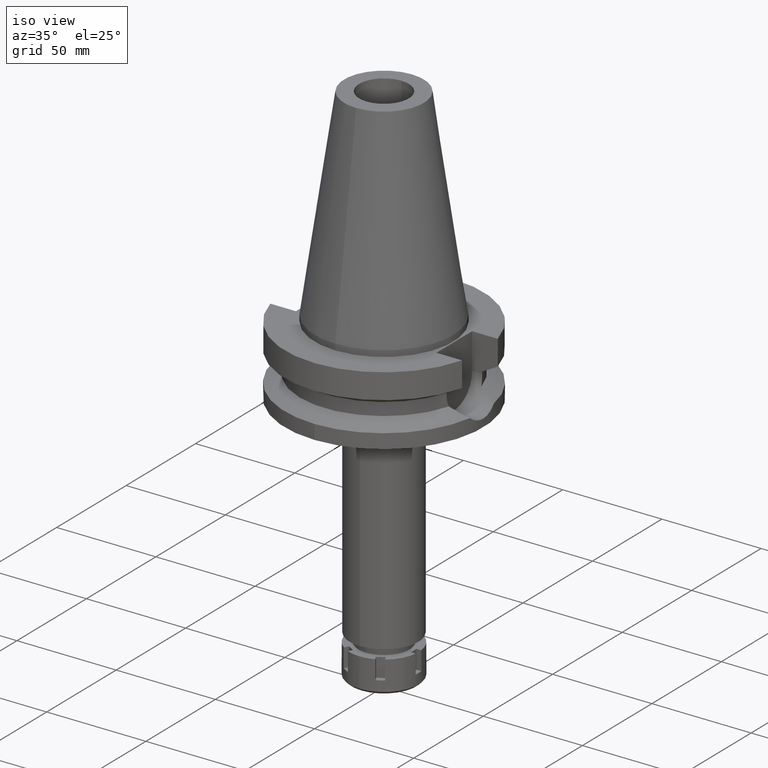
[diagram: clean part render]
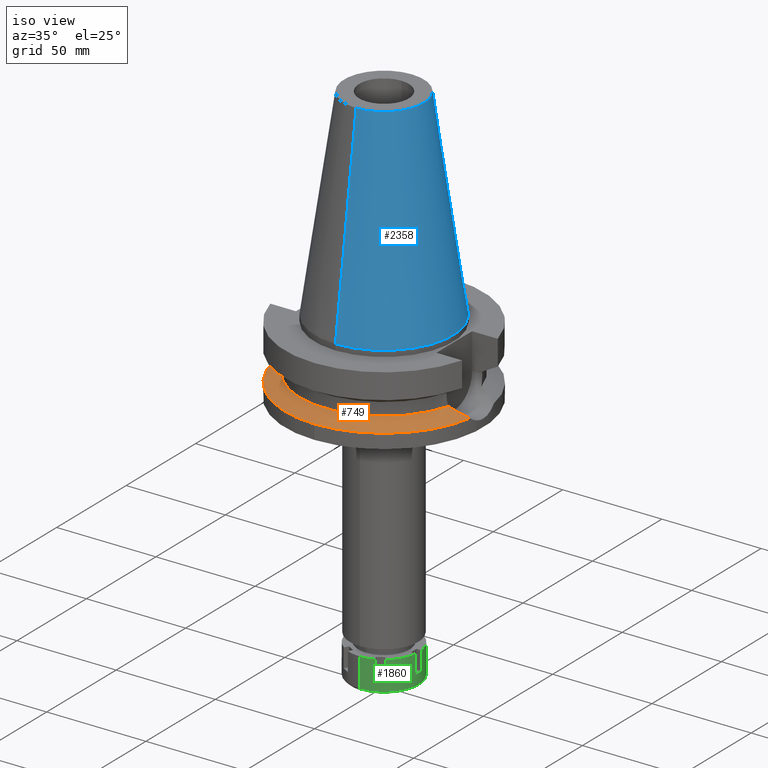
[diagram: same view with three faces highlighted in distinct colors, each labeled with its STEP entity id]
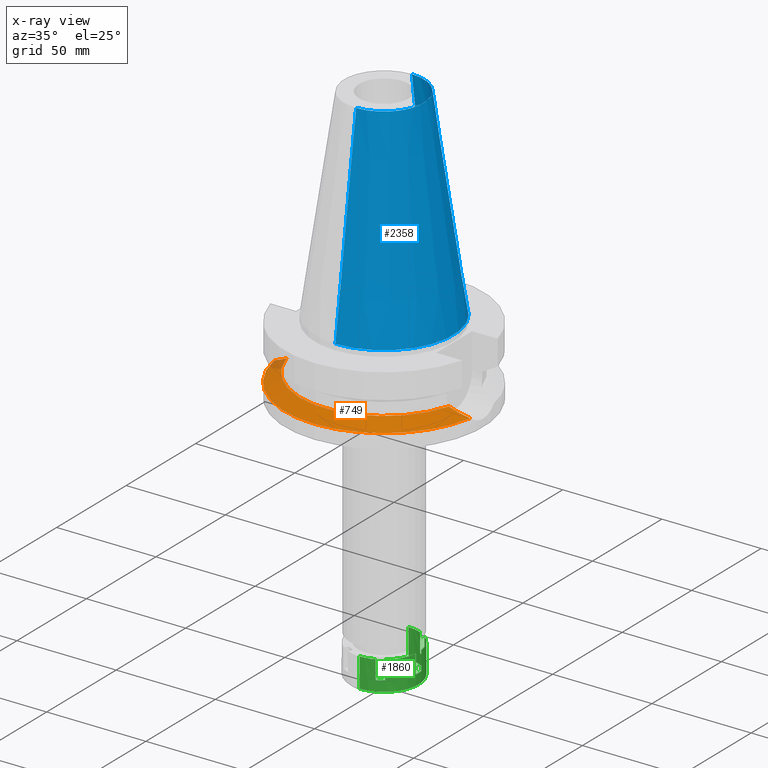
[diagram: x-ray of the same camera — body ghosted, the three highlighted faces saturated]
A machine part, iso view with three faces highlighted in distinct colors.
The next image is the same camera in x-ray (body ghosted, the three faces saturated) — at least one of them is partly hidden behind the body in this view.
Their STEP definitions:

[orange] entity #749 — the highlighted conical surface has half-angle 60 deg.
#41 = AXIS2_PLACEMENT_3D ( 'NONE', #3648, #2220, #3097 ) ;
#155 = DIRECTION ( 'NONE',  ( 0.0000000000000000000, -1.000000000000000000, 0.0000000000000000000 ) ) ;
#249 = CARTESIAN_POINT ( 'NONE',  ( 43.71205589239633582, -10.94529851844949953, -27.88622673543954278 ) ) ;
#266 = CARTESIAN_POINT ( 'NONE',  ( 44.08652366158886338, -10.82399127850445275, -28.07919682956623930 ) ) ;
#268 = CARTESIAN_POINT ( 'NONE',  ( -45.33991514702245240, -10.38063357216712390, -28.72396869562930632 ) ) ;
#326 = CARTESIAN_POINT ( 'NONE',  ( 0.0000000000000000000, -50.00000000000000000, -30.73730776426999967 ) ) ;
#368 = EDGE_CURVE ( 'NONE', #2691, #1750, #2238, .T. ) ;
#396 = ORIENTED_EDGE ( 'NONE', *, *, #368, .F. ) ;
#535 = CARTESIAN_POINT ( 'NONE',  ( 45.19864727449142094, -10.43327437534391677, -28.65163018592970445 ) ) ;
#539 = VERTEX_POINT ( 'NONE', #3121 ) ;
#557 = DIRECTION ( 'NONE',  ( 0.0000000000000000000, 0.0000000000000000000, -1.000000000000000000 ) ) ;
#708 = CARTESIAN_POINT ( 'NONE',  ( -40.85052569294000335, -11.72538061688000077, -26.40718074535000426 ) ) ;
#749 = ADVANCED_FACE ( 'NONE', ( #3534 ), #3039, .T. ) ;
#782 = ORIENTED_EDGE ( 'NONE', *, *, #1157, .F. ) ;
#810 = AXIS2_PLACEMENT_3D ( 'NONE', #888, #557, #2413 ) ;
#822 = CARTESIAN_POINT ( 'NONE',  ( 45.41149930443869920, -10.35343463059610514, -28.76111513600022462 ) ) ;
#837 = CARTESIAN_POINT ( 'NONE',  ( -45.47947479145116745, -10.32794287722815874, -28.79575928904283799 ) ) ;
#859 = CARTESIAN_POINT ( 'NONE',  ( -45.32671219262632434, -10.38558514207444361, -28.71717668202665408 ) ) ;
#888 = CARTESIAN_POINT ( 'NONE',  ( 0.0000000000000000000, 0.0000000000000000000, -28.57224425480999841 ) ) ;
#901 = CARTESIAN_POINT ( 'NONE',  ( 40.85052569294000335, -11.72538061688000077, -26.40718074535000426 ) ) ;
#905 = EDGE_LOOP ( 'NONE', ( #396, #782, #2512, #1445, #1078 ) ) ;
#1036 = DIRECTION ( 'NONE',  ( 0.0000000000000000000, -1.000000000000000000, 0.0000000000000000000 ) ) ;
#1047 = AXIS2_PLACEMENT_3D ( 'NONE', #3319, #1570, #1036 ) ;
#1078 = ORIENTED_EDGE ( 'NONE', *, *, #2577, .F. ) ;
#1079 = CARTESIAN_POINT ( 'NONE',  ( 40.85052569294000335, -11.72538061688000077, -26.40718074535000426 ) ) ;
#1141 = VERTEX_POINT ( 'NONE', #1079 ) ;
#1147 = CARTESIAN_POINT ( 'NONE',  ( -49.26250064874000145, -8.556052234130000045, -30.73730776426999967 ) ) ;
#1152 = CARTESIAN_POINT ( 'NONE',  ( 42.55071745611744660, -11.29929319511106023, -27.28707702801668233 ) ) ;
#1153 = CARTESIAN_POINT ( 'NONE',  ( -45.64115514236537763, -10.26608050230839808, -28.87892092315642500 ) ) ;
#1157 = EDGE_CURVE ( 'NONE', #539, #2691, #1481, .T. ) ;
#1298 = B_SPLINE_CURVE_WITH_KNOTS ( 'NONE', 3,
 ( #901, #1667, #1152, #249, #266, #1382, #2292, #535, #2525, #822, #3429, #2545, #2258, #3666, #1954 ),
 .UNSPECIFIED., .F., .F.,
 ( 4, 2, 2, 1, 1, 1, 2, 2, 4 ),
 ( 0.0000000000000000000, 0.2500000000000003331, 0.3750000000000014988, 0.4375000000000023315, 0.4687500000000027756, 0.4843750000000040523, 0.4921875000000048295, 0.5000000000000055511, 1.000000000000000000 ),
 .UNSPECIFIED. ) ;
#1323 = CARTESIAN_POINT ( 'NONE',  ( 0.0000000000000000000, 0.0000000000000000000, -26.40718074535000426 ) ) ;
#1327 = EDGE_CURVE ( 'NONE', #1141, #539, #1298, .T. ) ;
#1382 = CARTESIAN_POINT ( 'NONE',  ( 44.62925775102691972, -10.63815907006330619, -28.35864658413995798 ) ) ;
#1445 = ORIENTED_EDGE ( 'NONE', *, *, #2968, .F. ) ;
#1481 = CIRCLE ( 'NONE', #41, 50.00000000000000000 ) ;
#1533 = B_SPLINE_CURVE_WITH_KNOTS ( 'NONE', 3,
 ( #2259, #3167, #3431, #1706, #1993, #1684, #2834, #1153, #837, #3147, #1763, #268, #859, #1971, #1745, #2852 ),
 .UNSPECIFIED., .F., .F.,
 ( 4, 2, 2, 1, 1, 1, 1, 2, 2, 4 ),
 ( 0.0000000000000000000, 0.2500000000000850986, 0.3750000000001287859, 0.4375000000001507128, 0.4687500000001624811, 0.4843750000001693090, 0.4921875000001726952, 0.4960937500001733058, 0.5000000000001738609, 1.000000000000000000 ),
 .UNSPECIFIED. ) ;
#1570 = DIRECTION ( 'NONE',  ( 0.0000000000000000000, 0.0000000000000000000, -1.000000000000000000 ) ) ;
#1654 = AXIS2_PLACEMENT_3D ( 'NONE', #1323, #2146, #155 ) ;
#1667 = CARTESIAN_POINT ( 'NONE',  ( 41.72591166032965759, -11.52209110050590013, -26.86058858319618636 ) ) ;
#1684 = CARTESIAN_POINT ( 'NONE',  ( -46.22851604990404439, -10.03196276948648880, -29.18092708367271726 ) ) ;
#1706 = CARTESIAN_POINT ( 'NONE',  ( -47.09552617359732807, -9.660526748469512981, -29.62636400729780917 ) ) ;
#1745 = CARTESIAN_POINT ( 'NONE',  ( -42.52912223676329262, -11.33556276247899497, -27.27661303910516821 ) ) ;
#1750 = VERTEX_POINT ( 'NONE', #1147 ) ;
#1763 = CARTESIAN_POINT ( 'NONE',  ( -45.36323177517924421, -10.37187135454996678, -28.73596333807657643 ) ) ;
#1954 = CARTESIAN_POINT ( 'NONE',  ( 49.26250064874000145, -8.556052234130000045, -30.73730776426999967 ) ) ;
#1971 = CARTESIAN_POINT ( 'NONE',  ( -44.01780220698003632, -10.87568674646942846, -28.04382532369646341 ) ) ;
#1993 = CARTESIAN_POINT ( 'NONE',  ( -46.75546317251308892, -9.811123057261683655, -29.45172462093226429 ) ) ;
#2146 = DIRECTION ( 'NONE',  ( 0.0000000000000000000, 0.0000000000000000000, 1.000000000000000000 ) ) ;
#2220 = DIRECTION ( 'NONE',  ( 0.0000000000000000000, 0.0000000000000000000, -1.000000000000000000 ) ) ;
#2238 = CIRCLE ( 'NONE', #1047, 50.00000000000000000 ) ;
#2247 = CIRCLE ( 'NONE', #1654, 42.50000000000000000 ) ;
#2258 = CARTESIAN_POINT ( 'NONE',  ( 46.91867690740803454, -9.778675819256957169, -29.53630061612208024 ) ) ;
#2259 = CARTESIAN_POINT ( 'NONE',  ( -49.26250064874000145, -8.556052234130000045, -30.73730776426999967 ) ) ;
#2292 = CARTESIAN_POINT ( 'NONE',  ( 44.89588290465827214, -10.54427413037512906, -28.49587143876511419 ) ) ;
#2413 = DIRECTION ( 'NONE',  ( 0.0000000000000000000, -1.000000000000000000, 0.0000000000000000000 ) ) ;
#2512 = ORIENTED_EDGE ( 'NONE', *, *, #1327, .F. ) ;
#2525 = CARTESIAN_POINT ( 'NONE',  ( 45.34795488205713809, -10.37743536144881595, -28.72843099741480088 ) ) ;
#2545 = CARTESIAN_POINT ( 'NONE',  ( 45.47364822759700331, -10.32986049036476572, -28.79308085105692072 ) ) ;
#2577 = EDGE_CURVE ( 'NONE', #1750, #3530, #1533, .T. ) ;
#2691 = VERTEX_POINT ( 'NONE', #326 ) ;
#2834 = CARTESIAN_POINT ( 'NONE',  ( -45.96082933335384269, -10.14111845749937402, -29.04331959134392704 ) ) ;
#2852 = CARTESIAN_POINT ( 'NONE',  ( -40.85052569294000335, -11.72538061688000077, -26.40718074535000426 ) ) ;
#2968 = EDGE_CURVE ( 'NONE', #3530, #1141, #2247, .T. ) ;
#3039 = CONICAL_SURFACE ( 'NONE', #810, 46.25000000000000000, 1.047197551196400456 ) ;
#3097 = DIRECTION ( 'NONE',  ( 0.9852500129747439050, -0.1711210446826074982, 0.0000000000000000000 ) ) ;
#3121 = CARTESIAN_POINT ( 'NONE',  ( 49.26250064874000145, -8.556052234130000045, -30.73730776426999967 ) ) ;
#3147 = CARTESIAN_POINT ( 'NONE',  ( -45.39817380213906972, -10.35871663422425648, -28.75393815089545058 ) ) ;
#3167 = CARTESIAN_POINT ( 'NONE',  ( -48.69472545312260081, -8.881879085636674276, -30.44652836828989706 ) ) ;
#3319 = CARTESIAN_POINT ( 'NONE',  ( 0.0000000000000000000, 0.0000000000000000000, -30.73730776426999967 ) ) ;
#3429 = CARTESIAN_POINT ( 'NONE',  ( 45.45376346329539530, -10.33741897416011746, -28.78285341246331797 ) ) ;
#3431 = CARTESIAN_POINT ( 'NONE',  ( -48.08200993488475916, -9.200174691293726781, -30.13261548871570383 ) ) ;
#3530 = VERTEX_POINT ( 'NONE', #708 ) ;
#3534 = FACE_OUTER_BOUND ( 'NONE', #905, .T. ) ;
#3648 = CARTESIAN_POINT ( 'NONE',  ( 0.0000000000000000000, 0.0000000000000000000, -30.73730776426999967 ) ) ;
#3666 = CARTESIAN_POINT ( 'NONE',  ( 48.17421731096948179, -9.180580984649372667, -30.17995623842555730 ) ) ;

[blue] entity #2358 — the highlighted conical surface has half-angle 8.297 deg.
#121 = EDGE_LOOP ( 'NONE', ( #226, #1204, #1239, #3526 ) ) ;
#226 = ORIENTED_EDGE ( 'NONE', *, *, #1253, .T. ) ;
#280 = CARTESIAN_POINT ( 'NONE',  ( 0.0000000000000000000, -34.92499999999999716, 5.258016244624999869E-13 ) ) ;
#313 = DIRECTION ( 'NONE',  ( 0.0000000000000000000, -1.000000000000000000, 0.0000000000000000000 ) ) ;
#455 = VERTEX_POINT ( 'NONE', #280 ) ;
#521 = CARTESIAN_POINT ( 'NONE',  ( 0.0000000000000000000, 20.07942971896000017, 101.7999999999999972 ) ) ;
#600 = CARTESIAN_POINT ( 'NONE',  ( 0.0000000000000000000, -20.07942971896000017, 101.7999999999999972 ) ) ;
#651 = DIRECTION ( 'NONE',  ( 0.0000000000000000000, 0.0000000000000000000, -1.000000000000000000 ) ) ;
#694 = CIRCLE ( 'NONE', #3572, 34.92499999999999716 ) ;
#833 = CARTESIAN_POINT ( 'NONE',  ( 0.0000000000000000000, 20.07942971896000017, 101.7999999999999972 ) ) ;
#955 = CARTESIAN_POINT ( 'NONE',  ( 0.0000000000000000000, 34.92499999999999716, 5.258016244624999869E-13 ) ) ;
#1118 = DIRECTION ( 'NONE',  ( 0.0000000000000000000, 0.1443043893538948075, -0.9895333461855641000 ) ) ;
#1173 = VECTOR ( 'NONE', #1118, 1000.000000000000114 ) ;
#1204 = ORIENTED_EDGE ( 'NONE', *, *, #1960, .T. ) ;
#1239 = ORIENTED_EDGE ( 'NONE', *, *, #2660, .F. ) ;
#1253 = EDGE_CURVE ( 'NONE', #3579, #2547, #2492, .T. ) ;
#1313 = EDGE_CURVE ( 'NONE', #3579, #2779, #2583, .T. ) ;
#1493 = CARTESIAN_POINT ( 'NONE',  ( 0.0000000000000000000, 1.847992019912999597E-14, 50.89999999999999858 ) ) ;
#1528 = VECTOR ( 'NONE', #2327, 1000.000000000000114 ) ;
#1647 = CARTESIAN_POINT ( 'NONE',  ( 0.0000000000000000000, -20.07942971896000017, 101.7999999999999972 ) ) ;
#1744 = DIRECTION ( 'NONE',  ( 0.0000000000000000000, 1.000000000000000000, 0.0000000000000000000 ) ) ;
#1752 = FACE_OUTER_BOUND ( 'NONE', #121, .T. ) ;
#1933 = CONICAL_SURFACE ( 'NONE', #1996, 27.50221485948000222, 0.1448099680379422438 ) ;
#1960 = EDGE_CURVE ( 'NONE', #2547, #455, #3540, .T. ) ;
#1970 = CARTESIAN_POINT ( 'NONE',  ( 0.0000000000000000000, 1.847992019912999597E-14, 101.7999999999999972 ) ) ;
#1996 = AXIS2_PLACEMENT_3D ( 'NONE', #1493, #651, #313 ) ;
#2271 = DIRECTION ( 'NONE',  ( 0.0000000000000000000, 0.0000000000000000000, -1.000000000000000000 ) ) ;
#2327 = DIRECTION ( 'NONE',  ( 0.0000000000000000000, -0.1443043893538948075, -0.9895333461855641000 ) ) ;
#2358 = ADVANCED_FACE ( 'NONE', ( #1752 ), #1933, .T. ) ;
#2492 = CIRCLE ( 'NONE', #3151, 20.07942971896000017 ) ;
#2547 = VERTEX_POINT ( 'NONE', #1647 ) ;
#2583 = LINE ( 'NONE', #521, #1173 ) ;
#2584 = CARTESIAN_POINT ( 'NONE',  ( 0.0000000000000000000, 1.847992019912999597E-14, 3.979039320256999774E-13 ) ) ;
#2606 = DIRECTION ( 'NONE',  ( 0.0000000000000000000, 1.000000000000000000, 0.0000000000000000000 ) ) ;
#2660 = EDGE_CURVE ( 'NONE', #2779, #455, #694, .T. ) ;
#2779 = VERTEX_POINT ( 'NONE', #955 ) ;
#3151 = AXIS2_PLACEMENT_3D ( 'NONE', #1970, #2271, #1744 ) ;
#3187 = DIRECTION ( 'NONE',  ( 0.0000000000000000000, 0.0000000000000000000, -1.000000000000000000 ) ) ;
#3526 = ORIENTED_EDGE ( 'NONE', *, *, #1313, .F. ) ;
#3540 = LINE ( 'NONE', #600, #1528 ) ;
#3572 = AXIS2_PLACEMENT_3D ( 'NONE', #2584, #3187, #2606 ) ;
#3579 = VERTEX_POINT ( 'NONE', #833 ) ;

[green] entity #1860 — the highlighted cylindrical surface (partial cylindrical patch) has radius 17.5 mm, axis along (0, 0, -1).
#30 = LINE ( 'NONE', #1677, #2064 ) ;
#94 = CARTESIAN_POINT ( 'NONE',  ( 17.38533865071000051, 2.000000000000000000, -9.500000000000000000 ) ) ;
#106 = VECTOR ( 'NONE', #3615, 1000.000000000000000 ) ;
#127 = LINE ( 'NONE', #426, #1297 ) ;
#131 = CARTESIAN_POINT ( 'NONE',  ( 0.0000000000000000000, -17.50000000000000000, 0.0000000000000000000 ) ) ;
#141 = EDGE_CURVE ( 'NONE', #169, #1432, #2428, .T. ) ;
#169 = VERTEX_POINT ( 'NONE', #661 ) ;
#213 = DIRECTION ( 'NONE',  ( 0.3977496295879985877, 0.9174939957092961285, 0.0000000000000000000 ) ) ;
#219 = VECTOR ( 'NONE', #2002, 1000.000000000000000 ) ;
#235 = CARTESIAN_POINT ( 'NONE',  ( 0.0000000000000000000, -17.50000000000000000, 0.0000000000000000000 ) ) ;
#241 = VERTEX_POINT ( 'NONE', #94 ) ;
#251 = ORIENTED_EDGE ( 'NONE', *, *, #3117, .F. ) ;
#263 = CARTESIAN_POINT ( 'NONE',  ( 0.0000000000000000000, 0.0000000000000000000, -9.500000000000000000 ) ) ;
#320 = LINE ( 'NONE', #2254, #1243 ) ;
#338 = DIRECTION ( 'NONE',  ( 0.0000000000000000000, -1.000000000000000000, 0.0000000000000000000 ) ) ;
#359 = FACE_OUTER_BOUND ( 'NONE', #2305, .T. ) ;
#405 = DIRECTION ( 'NONE',  ( 0.9934479228979277154, 0.1142857142857031660, 0.0000000000000000000 ) ) ;
#426 = CARTESIAN_POINT ( 'NONE',  ( 10.42472013293000010, 14.05614492490999901, 0.0000000000000000000 ) ) ;
#443 = VERTEX_POINT ( 'NONE', #2251 ) ;
#454 = LINE ( 'NONE', #1579, #106 ) ;
#564 = EDGE_CURVE ( 'NONE', #2208, #3424, #30, .T. ) ;
#587 = DIRECTION ( 'NONE',  ( 0.0000000000000000000, 0.0000000000000000000, -1.000000000000000000 ) ) ;
#656 = ORIENTED_EDGE ( 'NONE', *, *, #564, .F. ) ;
#661 = CARTESIAN_POINT ( 'NONE',  ( 6.960618517787000137, -16.05614492491000078, 0.0000000000000000000 ) ) ;
#700 = ORIENTED_EDGE ( 'NONE', *, *, #141, .T. ) ;
#727 = EDGE_CURVE ( 'NONE', #2042, #443, #127, .T. ) ;
#753 = AXIS2_PLACEMENT_3D ( 'NONE', #1699, #587, #898 ) ;
#757 = ORIENTED_EDGE ( 'NONE', *, *, #3057, .T. ) ;
#813 = VECTOR ( 'NONE', #2744, 1000.000000000000000 ) ;
#898 = DIRECTION ( 'NONE',  ( 0.9934479228979277154, -0.1142857142857031660, 0.0000000000000000000 ) ) ;
#926 = AXIS2_PLACEMENT_3D ( 'NONE', #3467, #932, #3485 ) ;
#932 = DIRECTION ( 'NONE',  ( 0.0000000000000000000, 0.0000000000000000000, 1.000000000000000000 ) ) ;
#938 = DIRECTION ( 'NONE',  ( 0.5956982933103188715, -0.8032082814234259294, 0.0000000000000000000 ) ) ;
#943 = ORIENTED_EDGE ( 'NONE', *, *, #2729, .T. ) ;
#1028 = CARTESIAN_POINT ( 'NONE',  ( 0.0000000000000000000, 0.0000000000000000000, 0.0000000000000000000 ) ) ;
#1050 = EDGE_CURVE ( 'NONE', #1451, #1492, #2979, .T. ) ;
#1054 = ORIENTED_EDGE ( 'NONE', *, *, #1937, .T. ) ;
#1073 = ORIENTED_EDGE ( 'NONE', *, *, #1182, .F. ) ;
#1107 = AXIS2_PLACEMENT_3D ( 'NONE', #1785, #1542, #938 ) ;
#1114 = DIRECTION ( 'NONE',  ( 0.0000000000000000000, 0.0000000000000000000, -1.000000000000000000 ) ) ;
#1117 = EDGE_CURVE ( 'NONE', #1432, #3135, #3051, .T. ) ;
#1131 = CARTESIAN_POINT ( 'NONE',  ( 0.0000000000000000000, -17.50000000000000000, -14.75000000000000000 ) ) ;
#1145 = EDGE_CURVE ( 'NONE', #2042, #1769, #2244, .T. ) ;
#1169 = ORIENTED_EDGE ( 'NONE', *, *, #3634, .T. ) ;
#1170 = CARTESIAN_POINT ( 'NONE',  ( 0.0000000000000000000, 0.0000000000000000000, 0.0000000000000000000 ) ) ;
#1174 = DIRECTION ( 'NONE',  ( 0.3977496295877935850, -0.9174939957093850573, 0.0000000000000000000 ) ) ;
#1182 = EDGE_CURVE ( 'NONE', #241, #1769, #454, .T. ) ;
#1225 = ORIENTED_EDGE ( 'NONE', *, *, #727, .F. ) ;
#1243 = VECTOR ( 'NONE', #2601, 1000.000000000000000 ) ;
#1256 = VERTEX_POINT ( 'NONE', #2410 ) ;
#1297 = VECTOR ( 'NONE', #1566, 1000.000000000000000 ) ;
#1366 = DIRECTION ( 'NONE',  ( 0.0000000000000000000, 1.000000000000000000, 0.0000000000000000000 ) ) ;
#1387 = VERTEX_POINT ( 'NONE', #2644 ) ;
#1432 = VERTEX_POINT ( 'NONE', #131 ) ;
#1433 = CARTESIAN_POINT ( 'NONE',  ( 0.0000000000000000000, 17.50000000000000000, 0.0000000000000000000 ) ) ;
#1451 = VERTEX_POINT ( 'NONE', #2666 ) ;
#1492 = VERTEX_POINT ( 'NONE', #1836 ) ;
#1542 = DIRECTION ( 'NONE',  ( 0.0000000000000000000, 0.0000000000000000000, -1.000000000000000000 ) ) ;
#1557 = CARTESIAN_POINT ( 'NONE',  ( 10.42472013293000010, -14.05614492490999901, 0.0000000000000000000 ) ) ;
#1566 = DIRECTION ( 'NONE',  ( 0.0000000000000000000, -1.121909582779000024E-14, -1.000000000000000000 ) ) ;
#1576 = ORIENTED_EDGE ( 'NONE', *, *, #2748, .T. ) ;
#1579 = CARTESIAN_POINT ( 'NONE',  ( 17.38533865071000051, 2.000000000000000000, -9.500000000000000000 ) ) ;
#1603 = ORIENTED_EDGE ( 'NONE', *, *, #1117, .T. ) ;
#1615 = VERTEX_POINT ( 'NONE', #3074 ) ;
#1677 = CARTESIAN_POINT ( 'NONE',  ( 10.42472013293000010, -14.05614492490999901, -9.500000000000000000 ) ) ;
#1699 = CARTESIAN_POINT ( 'NONE',  ( 0.0000000000000000000, 0.0000000000000000000, 0.0000000000000000000 ) ) ;
#1714 = EDGE_CURVE ( 'NONE', #1615, #2323, #3109, .T. ) ;
#1761 = CARTESIAN_POINT ( 'NONE',  ( 0.0000000000000000000, 0.0000000000000000000, 0.0000000000000000000 ) ) ;
#1769 = VERTEX_POINT ( 'NONE', #2538 ) ;
#1785 = CARTESIAN_POINT ( 'NONE',  ( 0.0000000000000000000, 0.0000000000000000000, -9.500000000000000000 ) ) ;
#1810 = CARTESIAN_POINT ( 'NONE',  ( 10.42472013293000010, 14.05614492490999901, 0.0000000000000000000 ) ) ;
#1830 = CYLINDRICAL_SURFACE ( 'NONE', #2173, 17.50000000000000000 ) ;
#1836 = CARTESIAN_POINT ( 'NONE',  ( 6.960618517789000315, 16.05614492491000078, 0.0000000000000000000 ) ) ;
#1860 = ADVANCED_FACE ( 'NONE', ( #359 ), #1830, .T. ) ;
#1880 = DIRECTION ( 'NONE',  ( 0.0000000000000000000, 0.0000000000000000000, -1.000000000000000000 ) ) ;
#1937 = EDGE_CURVE ( 'NONE', #3135, #2323, #3140, .T. ) ;
#2002 = DIRECTION ( 'NONE',  ( 0.0000000000000000000, 0.0000000000000000000, -1.000000000000000000 ) ) ;
#2040 = CARTESIAN_POINT ( 'NONE',  ( 0.0000000000000000000, 17.50000000000000000, -14.75000000000000000 ) ) ;
#2042 = VERTEX_POINT ( 'NONE', #1810 ) ;
#2064 = VECTOR ( 'NONE', #2622, 1000.000000000000000 ) ;
#2137 = DIRECTION ( 'NONE',  ( 0.0000000000000000000, 0.0000000000000000000, -1.000000000000000000 ) ) ;
#2173 = AXIS2_PLACEMENT_3D ( 'NONE', #1170, #2906, #338 ) ;
#2186 = DIRECTION ( 'NONE',  ( 0.5956982933099820299, 0.8032082814236758406, 0.0000000000000000000 ) ) ;
#2204 = EDGE_CURVE ( 'NONE', #169, #1387, #2556, .T. ) ;
#2208 = VERTEX_POINT ( 'NONE', #2820 ) ;
#2244 = CIRCLE ( 'NONE', #2551, 17.50000000000000355 ) ;
#2251 = CARTESIAN_POINT ( 'NONE',  ( 10.42472013291999922, 14.05614492490999901, -9.500000000000000000 ) ) ;
#2254 = CARTESIAN_POINT ( 'NONE',  ( 17.38533865071000051, -2.000000000000000000, 0.0000000000000000000 ) ) ;
#2305 = EDGE_LOOP ( 'NONE', ( #1225, #3640, #1073, #943, #251, #757, #656, #1576, #2835, #700, #1603, #1054, #3350, #3646, #3047, #1169 ) ) ;
#2323 = VERTEX_POINT ( 'NONE', #2040 ) ;
#2360 = AXIS2_PLACEMENT_3D ( 'NONE', #1761, #2663, #1174 ) ;
#2379 = VECTOR ( 'NONE', #3661, 1000.000000000000000 ) ;
#2410 = CARTESIAN_POINT ( 'NONE',  ( 17.38533865071000051, -2.000000000000000000, -9.500000000000000000 ) ) ;
#2428 = CIRCLE ( 'NONE', #2360, 17.49999999999999645 ) ;
#2456 = EDGE_CURVE ( 'NONE', #1615, #1492, #3444, .T. ) ;
#2538 = CARTESIAN_POINT ( 'NONE',  ( 17.38533865071000051, 2.000000000000000000, 0.0000000000000000000 ) ) ;
#2551 = AXIS2_PLACEMENT_3D ( 'NONE', #1028, #1880, #2186 ) ;
#2556 = LINE ( 'NONE', #3688, #219 ) ;
#2601 = DIRECTION ( 'NONE',  ( 0.0000000000000000000, 0.0000000000000000000, -1.000000000000000000 ) ) ;
#2622 = DIRECTION ( 'NONE',  ( 0.0000000000000000000, 0.0000000000000000000, 1.000000000000000000 ) ) ;
#2644 = CARTESIAN_POINT ( 'NONE',  ( 6.960618517787000137, -16.05614492491000078, -9.500000000000000000 ) ) ;
#2663 = DIRECTION ( 'NONE',  ( 0.0000000000000000000, 0.0000000000000000000, -1.000000000000000000 ) ) ;
#2666 = CARTESIAN_POINT ( 'NONE',  ( 6.960618517790000404, 16.05614492491000078, -9.500000000000000000 ) ) ;
#2667 = DIRECTION ( 'NONE',  ( 0.0000000000000000000, 0.0000000000000000000, -1.000000000000000000 ) ) ;
#2708 = CARTESIAN_POINT ( 'NONE',  ( 0.0000000000000000000, 0.0000000000000000000, 0.0000000000000000000 ) ) ;
#2729 = EDGE_CURVE ( 'NONE', #241, #1256, #2795, .T. ) ;
#2744 = DIRECTION ( 'NONE',  ( 0.0000000000000000000, 0.0000000000000000000, -1.000000000000000000 ) ) ;
#2748 = EDGE_CURVE ( 'NONE', #2208, #1387, #2855, .T. ) ;
#2795 = CIRCLE ( 'NONE', #3280, 17.50000000000000711 ) ;
#2820 = CARTESIAN_POINT ( 'NONE',  ( 10.42472013293000010, -14.05614492490999901, -9.500000000000000000 ) ) ;
#2835 = ORIENTED_EDGE ( 'NONE', *, *, #2204, .F. ) ;
#2855 = CIRCLE ( 'NONE', #1107, 17.50000000000000355 ) ;
#2906 = DIRECTION ( 'NONE',  ( 0.0000000000000000000, 0.0000000000000000000, -1.000000000000000000 ) ) ;
#2973 = CARTESIAN_POINT ( 'NONE',  ( 0.0000000000000000000, 0.0000000000000000000, -9.500000000000000000 ) ) ;
#2979 = LINE ( 'NONE', #3080, #3395 ) ;
#3023 = CIRCLE ( 'NONE', #3605, 17.49999999999999645 ) ;
#3047 = ORIENTED_EDGE ( 'NONE', *, *, #1050, .F. ) ;
#3051 = LINE ( 'NONE', #235, #813 ) ;
#3057 = EDGE_CURVE ( 'NONE', #3626, #3424, #3218, .T. ) ;
#3074 = CARTESIAN_POINT ( 'NONE',  ( 0.0000000000000000000, 17.50000000000000000, 0.0000000000000000000 ) ) ;
#3080 = CARTESIAN_POINT ( 'NONE',  ( 6.960618517789000315, 16.05614492491000078, -9.500000000000000000 ) ) ;
#3087 = AXIS2_PLACEMENT_3D ( 'NONE', #2708, #2137, #1366 ) ;
#3109 = LINE ( 'NONE', #1433, #2379 ) ;
#3117 = EDGE_CURVE ( 'NONE', #3626, #1256, #320, .T. ) ;
#3135 = VERTEX_POINT ( 'NONE', #1131 ) ;
#3140 = CIRCLE ( 'NONE', #926, 17.50000000000000000 ) ;
#3218 = CIRCLE ( 'NONE', #753, 17.50000000000000711 ) ;
#3280 = AXIS2_PLACEMENT_3D ( 'NONE', #2973, #2667, #405 ) ;
#3328 = DIRECTION ( 'NONE',  ( 0.0000000000000000000, 0.0000000000000000000, 1.000000000000000000 ) ) ;
#3350 = ORIENTED_EDGE ( 'NONE', *, *, #1714, .F. ) ;
#3373 = CARTESIAN_POINT ( 'NONE',  ( 17.38533865071000051, -2.000000000000000000, 0.0000000000000000000 ) ) ;
#3395 = VECTOR ( 'NONE', #3328, 1000.000000000000000 ) ;
#3424 = VERTEX_POINT ( 'NONE', #1557 ) ;
#3444 = CIRCLE ( 'NONE', #3087, 17.50000000000000000 ) ;
#3467 = CARTESIAN_POINT ( 'NONE',  ( 0.0000000000000000000, 0.0000000000000000000, -14.75000000000000000 ) ) ;
#3485 = DIRECTION ( 'NONE',  ( 0.0000000000000000000, -1.000000000000000000, 0.0000000000000000000 ) ) ;
#3605 = AXIS2_PLACEMENT_3D ( 'NONE', #263, #1114, #213 ) ;
#3615 = DIRECTION ( 'NONE',  ( 0.0000000000000000000, 0.0000000000000000000, 1.000000000000000000 ) ) ;
#3626 = VERTEX_POINT ( 'NONE', #3373 ) ;
#3634 = EDGE_CURVE ( 'NONE', #1451, #443, #3023, .T. ) ;
#3640 = ORIENTED_EDGE ( 'NONE', *, *, #1145, .T. ) ;
#3646 = ORIENTED_EDGE ( 'NONE', *, *, #2456, .T. ) ;
#3661 = DIRECTION ( 'NONE',  ( 0.0000000000000000000, 0.0000000000000000000, -1.000000000000000000 ) ) ;
#3688 = CARTESIAN_POINT ( 'NONE',  ( 6.960618517787000137, -16.05614492491000078, 0.0000000000000000000 ) ) ;